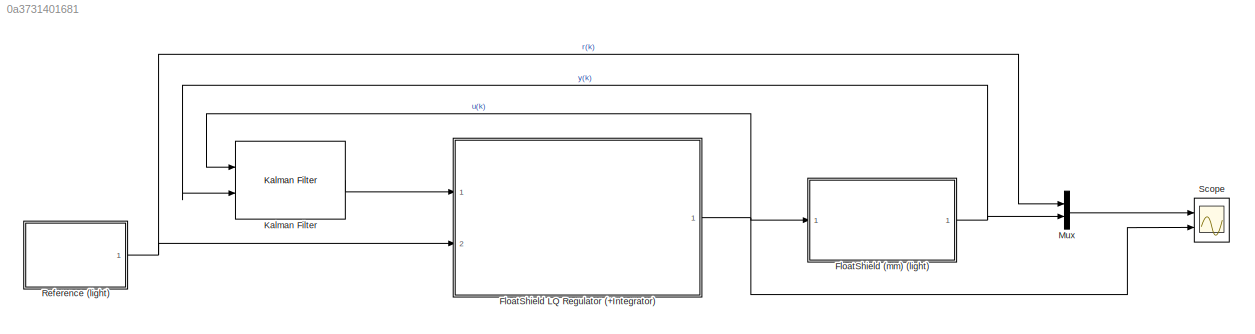
MODEL slx_0a3731401681
KIND model
CONFIG AbsTol = auto
CONFIG EnableMultiTasking = on
CONFIG FixedStep = 0.025
CONFIG MaxStep = auto
CONFIG MinStep = auto
CONFIG RelTol = 1e-3
CONFIG SampleTimeConstraint = Unconstrained
CONFIG Solver = FixedStepDiscrete
CONFIG SolverName = FixedStepDiscrete
CONFIG StartTime = 0.0
CONFIG StopTime = Inf
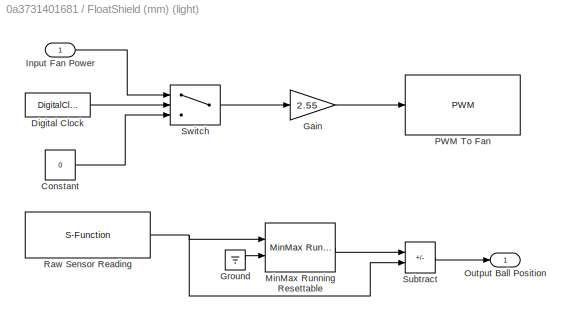
BLOCK [SubSystem] FloatShield (mm) (light)
  Ports = [1, 1]
  RequestExecContextInheritance = off
BLOCK [Constant] FloatShield (mm) (light)/Constant
  SampleTime = Ts
  Value = 0
BLOCK [DigitalClock] FloatShield (mm) (light)/Digital Clock
  SampleTime = Ts
BLOCK [Gain] FloatShield (mm) (light)/Gain
  Gain = 2.55
BLOCK [Ground] FloatShield (mm) (light)/Ground
BLOCK [Inport] FloatShield (mm) (light)/Input Fan Power
  SampleTime = Ts
BLOCK [Reference] FloatShield (mm) (light)/MinMax Running Resettable  REF=simulink/Math
Operations/MinMax
Running
Resettable
  Ports = [2, 1]
  SourceBlock = simulink/Math\nOperations/MinMax\nRunning\nResettable
  SourceProductBaseCode = SL
  SourceType = MinMax Running Resettable
BLOCK [Outport] FloatShield (mm) (light)/Output Ball Position
  SampleTime = Ts
  VectorParamsAs1DForOutWhenUnconnected = off
BLOCK [Reference] FloatShield (mm) (light)/PWM To Fan  REF=arduinolib/PWM
  Ports = [1]
  SourceBlock = arduinolib/PWM
  SourceProductBaseCode = ARDUINO
  SourceType = Arduino PWM
BLOCK [S-Function] FloatShield (mm) (light)/Raw Sensor Reading
  EnableBusSupport = off
  FunctionName = PololuVL53L0X
  Ports = [0, 1]
  SFcnIsStateOwnerBlock = off
  SFunctionDeploymentMode = off
  SFunctionModules = 'PololuVL53L0X_wrapper'
BLOCK [Sum] FloatShield (mm) (light)/Subtract
  IconShape = rectangular
  Inputs = +-
  Ports = [2, 1]
BLOCK [Switch] FloatShield (mm) (light)/Switch
  Criteria = u2 > Threshold
  InputSameDT = off
  SaturateOnIntegerOverflow = off
  Threshold = CalTime
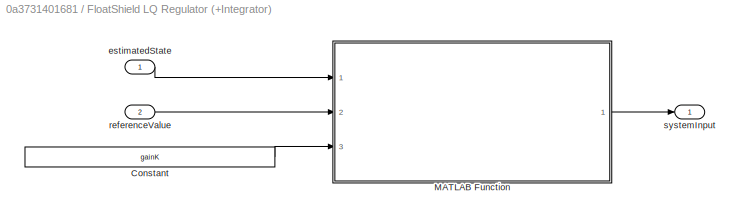
BLOCK [SubSystem] FloatShield LQ Regulator (+Integrator)
  Ports = [2, 1]
  RequestExecContextInheritance = off
BLOCK [Constant] FloatShield LQ Regulator (+Integrator)/Constant
  SampleTime = Ts
  Value = gainK
  VectorParams1D = off
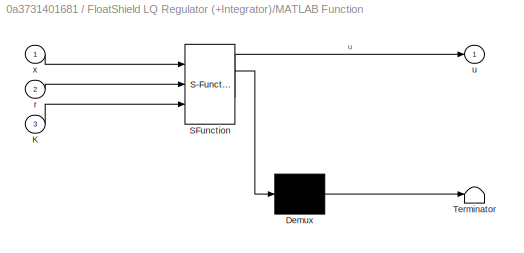
BLOCK [SubSystem] FloatShield LQ Regulator (+Integrator)/MATLAB Function
  ErrorFcn = Stateflow.Translate.translate
  PermitHierarchicalResolution = ExplicitOnly
  Ports = [3, 1]
  RequestExecContextInheritance = off
  SFBlockType = MATLAB Function
  TreatAsAtomicUnit = on
BLOCK [Demux] FloatShield LQ Regulator (+Integrator)/MATLAB Function/ Demux 
  Outputs = 1
  Ports = [1, 1]
BLOCK [S-Function] FloatShield LQ Regulator (+Integrator)/MATLAB Function/ SFunction 
  EnableBusSupport = on
  FunctionName = sf_sfun
  PortCounts = [3 2]
  Ports = [3, 2]
  SFcnIsStateOwnerBlock = off
  SFunctionDeploymentMode = off
  Tag = Stateflow S-Function FloatShield_LQ2 6
BLOCK [Terminator] FloatShield LQ Regulator (+Integrator)/MATLAB Function/ Terminator 
BLOCK [Inport] FloatShield LQ Regulator (+Integrator)/MATLAB Function/K
  Port = 3
BLOCK [Inport] FloatShield LQ Regulator (+Integrator)/MATLAB Function/r
  Port = 2
BLOCK [Outport] FloatShield LQ Regulator (+Integrator)/MATLAB Function/u
  VectorParamsAs1DForOutWhenUnconnected = off
BLOCK [Inport] FloatShield LQ Regulator (+Integrator)/MATLAB Function/x
BLOCK [Inport] FloatShield LQ Regulator (+Integrator)/estimatedState
  SampleTime = Ts
BLOCK [Inport] FloatShield LQ Regulator (+Integrator)/referenceValue
  Port = 2
  SampleTime = Ts
BLOCK [Outport] FloatShield LQ Regulator (+Integrator)/systemInput
  SampleTime = Ts
  VectorParamsAs1DForOutWhenUnconnected = off
BLOCK [Reference] Kalman Filter  REF=ctrlSharedLib/Kalman Filter
  Ports = [2, 1]
  SourceBlock = ctrlSharedLib/Kalman Filter
  SourceProductBaseCode = CT,ID
  SourceType = ctrlKalmanFilter
BLOCK [Mux] Mux
  DisplayOption = bar
  Inputs = 2
  Ports = [2, 1]
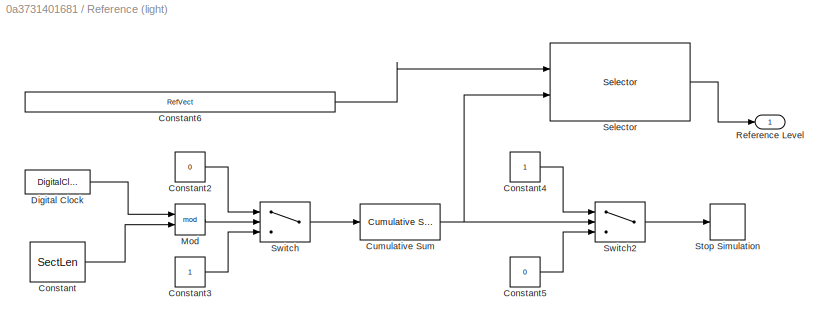
BLOCK [SubSystem] Reference (light)
  Ports = [0, 1]
  RequestExecContextInheritance = off
  StopFcn = if exist('ScopeData')\nstructVar=ScopeData;\nend\n\nif exist('structVar')\n[a u]=structVar.signals.values;\nr=a(:,1);\ny=a(:,2);\nSimulinkLQResponse=[r,y,u];\nclear ScopeData structVar a u r y ;\nsave SimulinkLQResponse SimulinkLQResponse;\nplotResults(SimulinkLQResponse);\nend
BLOCK [Constant] Reference (light)/Constant
  SampleTime = Ts
  Value = SectLen
BLOCK [Constant] Reference (light)/Constant2
  SampleTime = Ts
  Value = 0
BLOCK [Constant] Reference (light)/Constant3
  SampleTime = Ts
BLOCK [Constant] Reference (light)/Constant4
  SampleTime = Ts
BLOCK [Constant] Reference (light)/Constant5
  SampleTime = Ts
  Value = 0
BLOCK [Constant] Reference (light)/Constant6
  SampleTime = Ts
  Value = RefVect
BLOCK [Reference] Reference (light)/Cumulative Sum  REF=dspmathops/Cumulative
Sum
  Ports = [1, 1]
  SourceBlock = dspmathops/Cumulative\nSum
  SourceProductBaseCode = DS
  SourceType = Cumulative Sum
  UserDataPersistent = on
BLOCK [DigitalClock] Reference (light)/Digital Clock
  SampleTime = Ts
BLOCK [Math] Reference (light)/Mod
  Operator = mod
  Ports = [2, 1]
BLOCK [Outport] Reference (light)/Reference Level
  SampleTime = Ts
  VectorParamsAs1DForOutWhenUnconnected = off
BLOCK [Selector] Reference (light)/Selector
  IndexOptions = Index vector (port)
  Indices = [1 3]
  InputPortWidth = RefLen
  OutputSizes = 1
  Ports = [2, 1]
BLOCK [Stop] Reference (light)/Stop Simulation
BLOCK [Switch] Reference (light)/Switch
  Criteria = u2 ~= 0
  InputSameDT = off
  SaturateOnIntegerOverflow = off
BLOCK [Switch] Reference (light)/Switch2
  Criteria = u2 > Threshold
  InputSameDT = off
  OutDataTypeStr = Inherit: Inherit via back propagation
  SaturateOnIntegerOverflow = off
  Threshold = RefLen
BLOCK [Scope] Scope
  Floating = off
  NumInputPorts = 2
  Ports = [2]
  ScopeSpecificationString = Simulink.scopes.TimeScopeBlockCfg('CurrentConfiguration', extmgr.ConfigurationSet(extmgr.Configuration('Core','General UI',true),extmgr.Configuration('Core','Source UI',true),extmgr.Configuration('Sources','WiredSimulink',true,'DataLogging',true,'DataLoggingSaveFormat','Structure'),extmgr.Configuration('Visuals','Time Domain',true,'SerializedDisplays',{struct('MinYLimReal','0.00000','MaxYLimReal',...<+2275ch>
LINE FloatShield (mm) (light)/Constant:1 -> FloatShield (mm) (light)/Switch:3
LINE FloatShield (mm) (light)/Digital Clock:1 -> FloatShield (mm) (light)/Switch:2
LINE FloatShield (mm) (light)/Gain:1 -> FloatShield (mm) (light)/PWM To Fan:1
LINE FloatShield (mm) (light)/Ground:1 -> FloatShield (mm) (light)/MinMax Running Resettable:2
LINE FloatShield (mm) (light)/Input Fan Power:1 -> FloatShield (mm) (light)/Switch:1
LINE FloatShield (mm) (light)/MinMax Running Resettable:1 -> FloatShield (mm) (light)/Subtract:1
NET FloatShield (mm) (light)/Raw Sensor Reading:1 -> FloatShield (mm) (light)/MinMax Running Resettable:1, FloatShield (mm) (light)/Subtract:2
LINE FloatShield (mm) (light)/Subtract:1 -> FloatShield (mm) (light)/Output Ball Position:1
LINE FloatShield (mm) (light)/Switch:1 -> FloatShield (mm) (light)/Gain:1
NET FloatShield (mm) (light):1 -> Kalman Filter:2, Mux:2
LINE FloatShield LQ Regulator (+Integrator)/Constant:1 -> FloatShield LQ Regulator (+Integrator)/MATLAB Function:3
LINE FloatShield LQ Regulator (+Integrator)/MATLAB Function:1 -> FloatShield LQ Regulator (+Integrator)/systemInput:1
LINE FloatShield LQ Regulator (+Integrator)/estimatedState:1 -> FloatShield LQ Regulator (+Integrator)/MATLAB Function:1
LINE FloatShield LQ Regulator (+Integrator)/referenceValue:1 -> FloatShield LQ Regulator (+Integrator)/MATLAB Function:2
NET FloatShield LQ Regulator (+Integrator):1 -> FloatShield (mm) (light):1, Kalman Filter:1, Scope:2
LINE Kalman Filter:1 -> FloatShield LQ Regulator (+Integrator):1
LINE Mux:1 -> Scope:1
LINE Reference (light)/Constant2:1 -> Reference (light)/Switch:1
LINE Reference (light)/Constant3:1 -> Reference (light)/Switch:3
LINE Reference (light)/Constant4:1 -> Reference (light)/Switch2:1
LINE Reference (light)/Constant5:1 -> Reference (light)/Switch2:3
LINE Reference (light)/Constant6:1 -> Reference (light)/Selector:1
LINE Reference (light)/Constant:1 -> Reference (light)/Mod:2
NET Reference (light)/Cumulative Sum:1 -> Reference (light)/Selector:2, Reference (light)/Switch2:2
LINE Reference (light)/Digital Clock:1 -> Reference (light)/Mod:1
LINE Reference (light)/Mod:1 -> Reference (light)/Switch:2
LINE Reference (light)/Selector:1 -> Reference (light)/Reference Level:1
LINE Reference (light)/Switch2:1 -> Reference (light)/Stop Simulation:1
LINE Reference (light)/Switch:1 -> Reference (light)/Cumulative Sum:1
NET Reference (light):1 -> FloatShield LQ Regulator (+Integrator):2, Mux:1
note: NET lines group one-source signal fan-out (src -> all destinations, sorted); 1:1 wires keep LINE
CHART FloatShield LQ Regulator (+Integrator)/MATLAB Function states=1 transitions=1
  STATE_LABEL 'eML_blk_kernel()'
  STATE_LABEL 'SCRIPT:\nfunction u = fcn(x, r, K)\npersistent xI;\nif isempty(xI)    \n    xI = 0;\nend\nxI = xI + r - x(1);\nx = [x; xI];\nu = -K * (x - [r;0;0;0]);\n'
